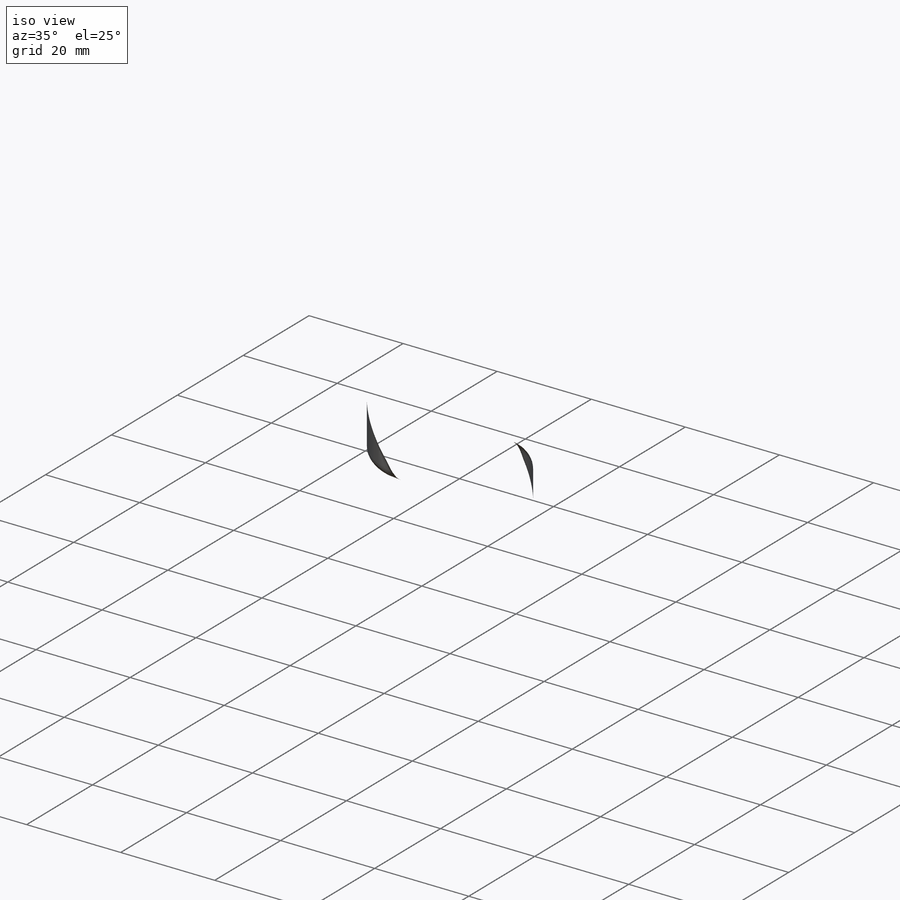
[diagram: iso view]
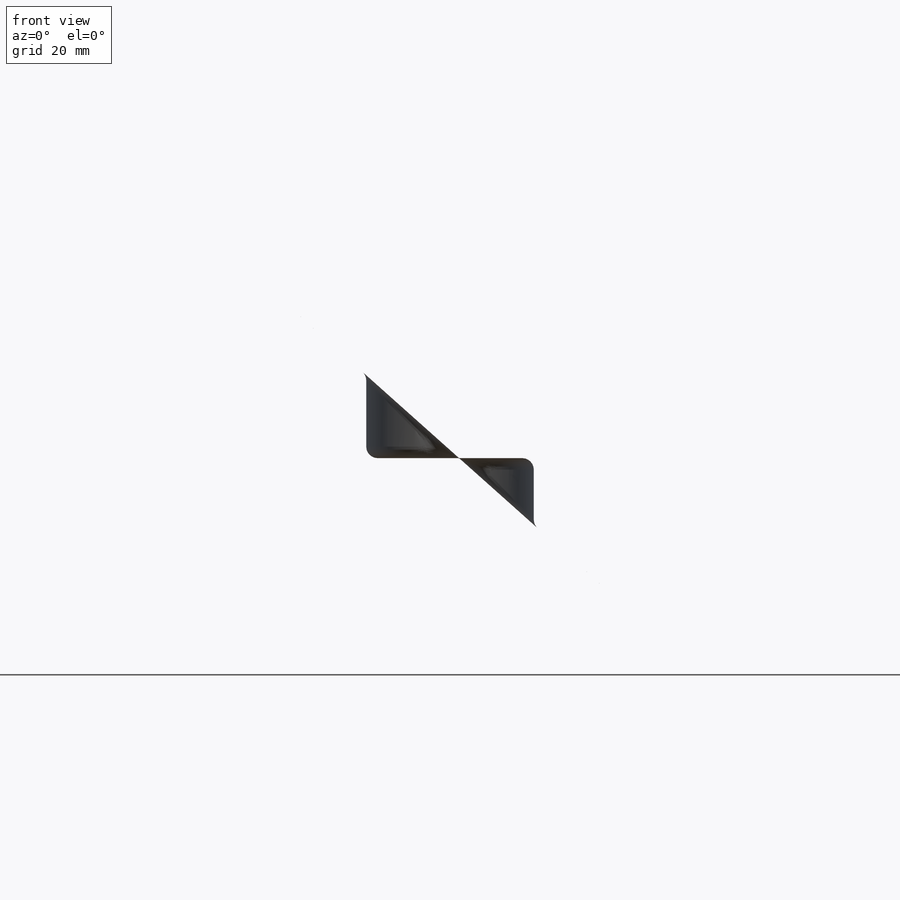
[diagram: front view]
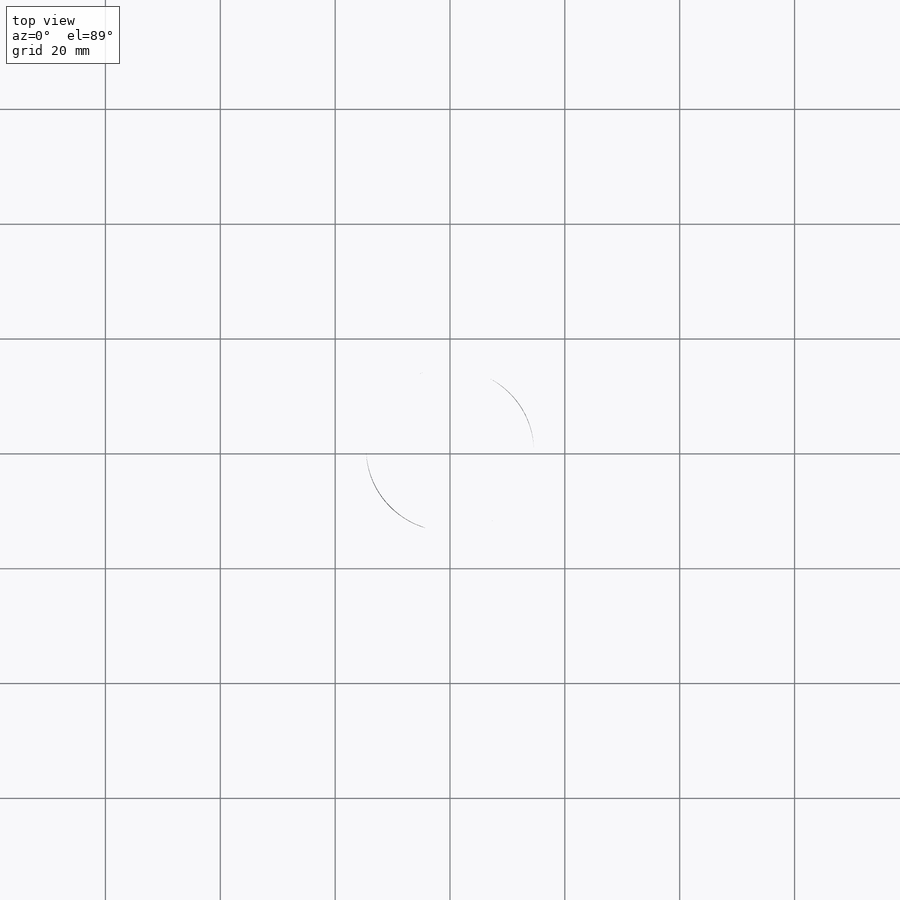
[diagram: top view]
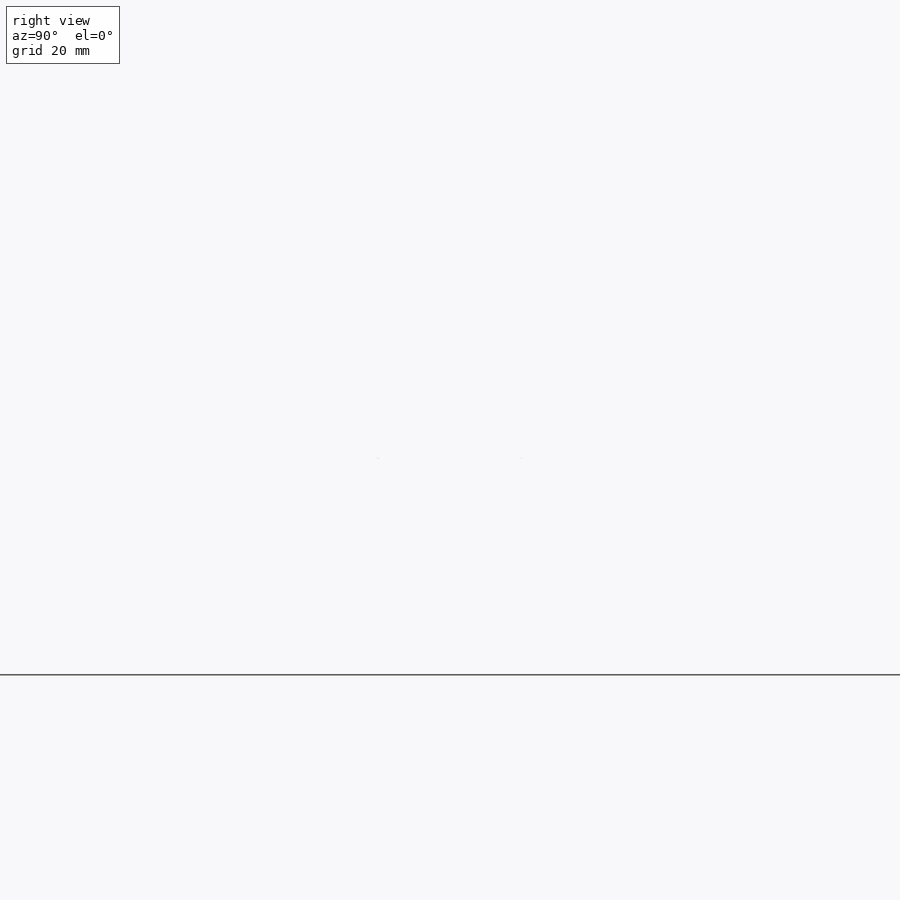
[diagram: right view]
SOLIDWORKS PART (.sldprt)
format: sldprt  version: not decoded by parser v0  size: 396,288 bytes
history: native  units: mm
features: sketch x5, plane x4, fillet x4, surface_op x3, material x1 (+9 scaffold rows collapsed)
feature tree (26):
  scaffold x9  (default folders/planes/origin — collapsed)
  material  "7075-T6, Plate (SS)"
  plane  "Ebene vorne"
  plane  "Ebene oben"
  plane  "Ebene rechts"
  sketch  "Skizze1"  dims[c1.D1=~72.537066mm c2.D1=45.0deg]
  surface_op  "Oberfläche-Linear austragen1"
  sketch  "Skizze5"
  plane  "Ebene1"
  sketch  "Skizze2"
  sketch  "Skizze3"
  sketch  "Skizze4"
  surface_op  "Oberfläche-Linear austragen2"
  surface_op  "Oberfläche-Linear austragen3"
  fillet  "Verrundung1"  Radius=2mm
  fillet  "Verrundung3"  Radius=2mm
  fillet  "Verrundung4"  Radius=2mm
  fillet  "Verrundung5"  Radius=2mm
decode coverage: 5 of 12 modeling features carry decoded parameters
note: ~ marks probable driven/reference dimensions
note: suppression state not decoded; provenance and decode notes live in map.json
